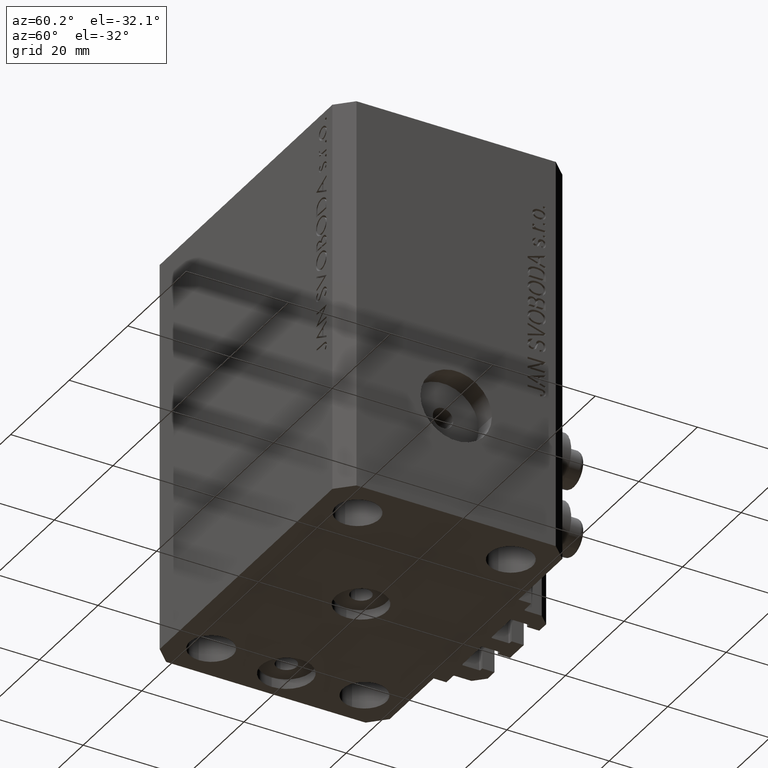
[diagram: clean part render]
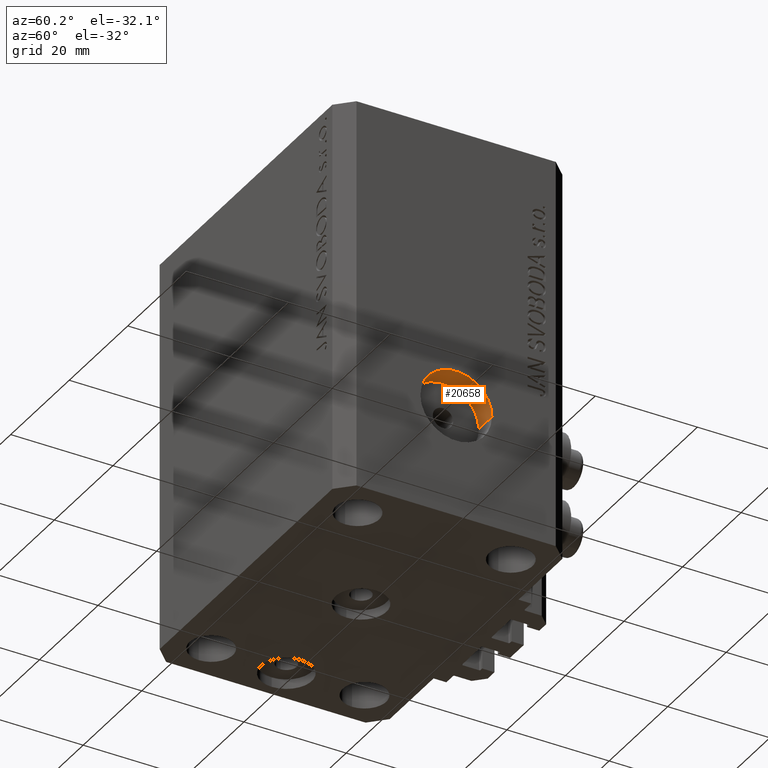
[diagram: same view with one face highlighted and labeled with its STEP entity id]
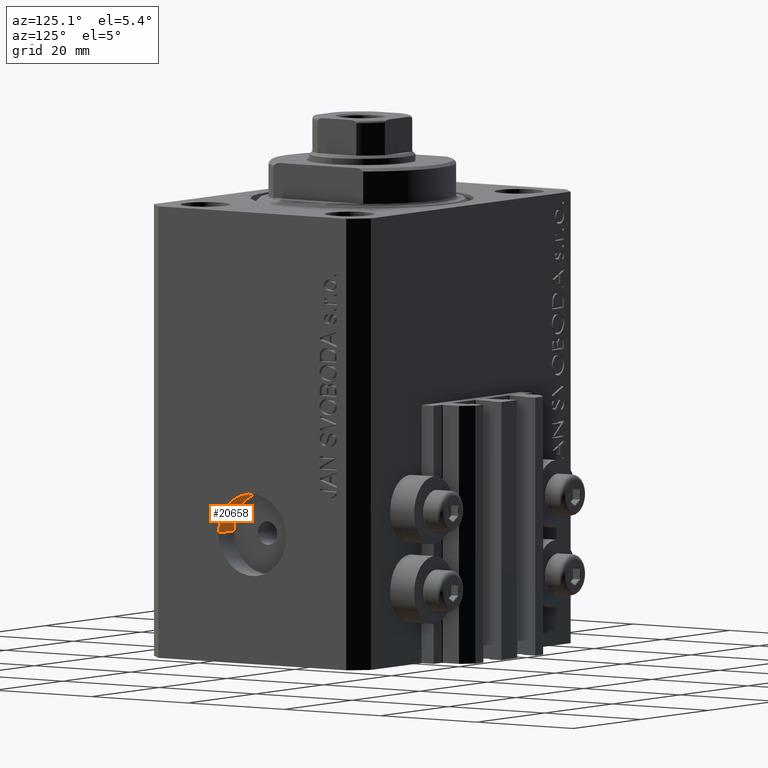
[diagram: same view with one face highlighted and labeled with its STEP entity id]
A machine part, auxiliary view. The second image highlights one B-rep face of the part: STEP entity #20658.
A second angle (auxiliary view) of the same face is appended — the face is thin or edge-on in the first view.
In plain terms, the highlighted cylindrical surface (partial cylindrical patch) has radius 7 mm, axis along (1, -0, 0).
Its self-contained STEP definition (entity closure, byte-faithful):
#827 = DIRECTION ( 'NONE',  ( 1.338215252896394112E-14, 1.000000000000000000, 0.000000000000000000 ) ) ;
#957 = LINE ( 'NONE', #39761, #18934 ) ;
#2804 = EDGE_LOOP ( 'NONE', ( #9923, #14382, #24499, #36102 ) ) ;
#3018 = LINE ( 'NONE', #25117, #42921 ) ;
#6570 = EDGE_CURVE ( 'NONE', #13138, #37585, #957, .T. ) ;
#8313 = CIRCLE ( 'NONE', #38997, 7.000000000000000000 ) ;
#9923 = ORIENTED_EDGE ( 'NONE', *, *, #6570, .F. ) ;
#10044 = DIRECTION ( 'NONE',  ( 1.338215252896394112E-14, 1.000000000000000000, 0.000000000000000000 ) ) ;
#13138 = VERTEX_POINT ( 'NONE', #23415 ) ;
#14382 = ORIENTED_EDGE ( 'NONE', *, *, #38051, .F. ) ;
#16534 = DIRECTION ( 'NONE',  ( 1.000000000000000000, -1.334402673828349134E-14, 0.000000000000000000 ) ) ;
#18822 = CYLINDRICAL_SURFACE ( 'NONE', #33294, 7.000000000000000000 ) ;
#18934 = VECTOR ( 'NONE', #27996, 1000.000000000000000 ) ;
#20281 = DIRECTION ( 'NONE',  ( 1.288651725011342390E-14, 1.000000000000000000, 0.000000000000000000 ) ) ;
#20520 = DIRECTION ( 'NONE',  ( 1.000000000000000000, -1.334402673828349134E-14, 0.000000000000000000 ) ) ;
#20658 = ADVANCED_FACE ( 'NONE', ( #41395 ), #18822, .F. ) ;
#21508 = DIRECTION ( 'NONE',  ( 1.000000000000000000, -1.334402673828348976E-14, -0.000000000000000000 ) ) ;
#22903 = DIRECTION ( 'NONE',  ( 1.000000000000000000, -1.334402673828348976E-14, -0.000000000000000000 ) ) ;
#23415 = CARTESIAN_POINT ( 'NONE',  ( 27.99999999999668177, -6.999999999999957367, -55.00000000000000000 ) ) ;
#24499 = ORIENTED_EDGE ( 'NONE', *, *, #42019, .T. ) ;
#24942 = CARTESIAN_POINT ( 'NONE',  ( 27.99999999999677414, 4.270088556253899177E-14, -55.00000000000000000 ) ) ;
#25117 = CARTESIAN_POINT ( 'NONE',  ( 27.99999999999686651, 7.000000000000042633, -55.00000000000000000 ) ) ;
#25974 = AXIS2_PLACEMENT_3D ( 'NONE', #24942, #16534, #10044 ) ;
#26761 = CARTESIAN_POINT ( 'NONE',  ( 27.99999999999677414, 4.270088556253899177E-14, -55.00000000000000000 ) ) ;
#27996 = DIRECTION ( 'NONE',  ( 1.000000000000000000, -1.334402673828348976E-14, -0.000000000000000000 ) ) ;
#28788 = VERTEX_POINT ( 'NONE', #32813 ) ;
#29029 = CIRCLE ( 'NONE', #25974, 7.000000000000000000 ) ;
#29565 = VERTEX_POINT ( 'NONE', #32824 ) ;
#29975 = CARTESIAN_POINT ( 'NONE',  ( 32.49999999999677414, -1.734723475973671215E-14, -55.00000000000000000 ) ) ;
#31007 = CARTESIAN_POINT ( 'NONE',  ( 32.49999999999668177, -7.000000000000018652, -55.00000000000000000 ) ) ;
#32813 = CARTESIAN_POINT ( 'NONE',  ( 27.99999999999686651, 7.000000000000042633, -55.00000000000000000 ) ) ;
#32824 = CARTESIAN_POINT ( 'NONE',  ( 32.49999999999686651, 6.999999999999983125, -55.00000000000000000 ) ) ;
#33294 = AXIS2_PLACEMENT_3D ( 'NONE', #26761, #22903, #827 ) ;
#35510 = EDGE_CURVE ( 'NONE', #29565, #37585, #8313, .T. ) ;
#36102 = ORIENTED_EDGE ( 'NONE', *, *, #35510, .T. ) ;
#37585 = VERTEX_POINT ( 'NONE', #31007 ) ;
#38051 = EDGE_CURVE ( 'NONE', #28788, #13138, #29029, .T. ) ;
#38997 = AXIS2_PLACEMENT_3D ( 'NONE', #29975, #20520, #20281 ) ;
#39761 = CARTESIAN_POINT ( 'NONE',  ( 27.99999999999668177, -6.999999999999957367, -55.00000000000000000 ) ) ;
#41395 = FACE_OUTER_BOUND ( 'NONE', #2804, .T. ) ;
#42019 = EDGE_CURVE ( 'NONE', #28788, #29565, #3018, .T. ) ;
#42921 = VECTOR ( 'NONE', #21508, 1000.000000000000000 ) ;